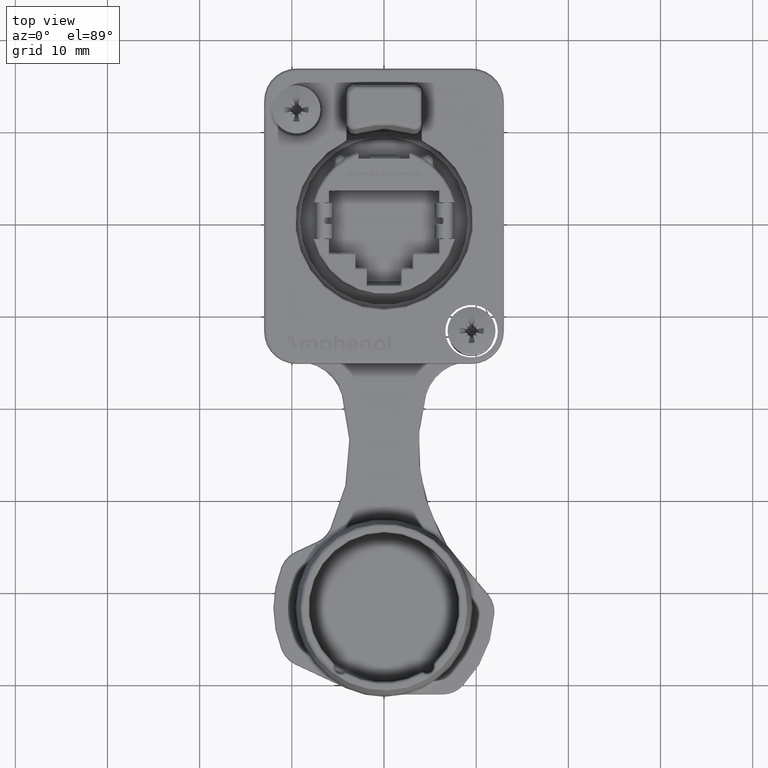
[diagram: clean part render]
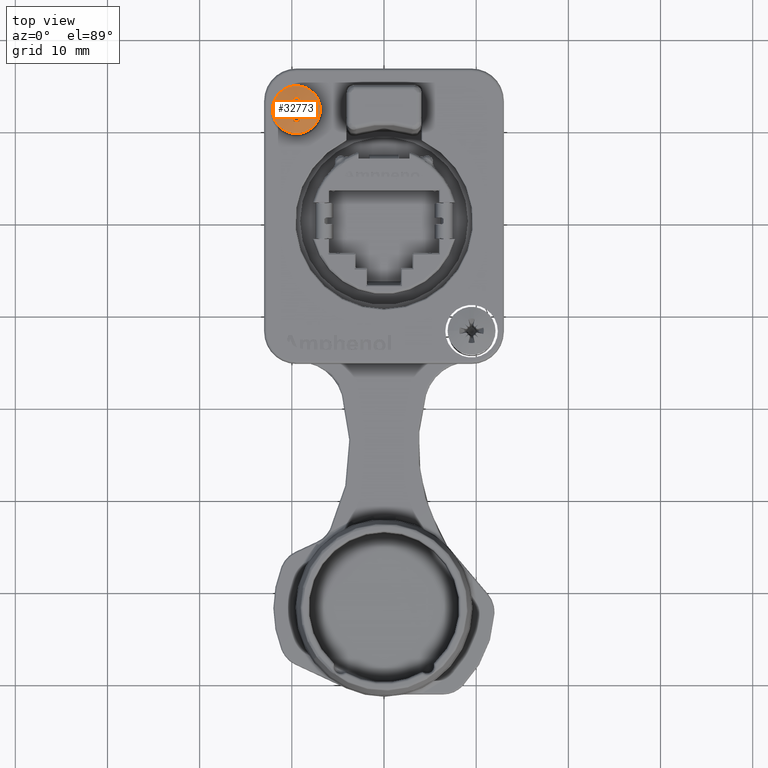
[diagram: same view with one face highlighted and labeled with its STEP entity id]
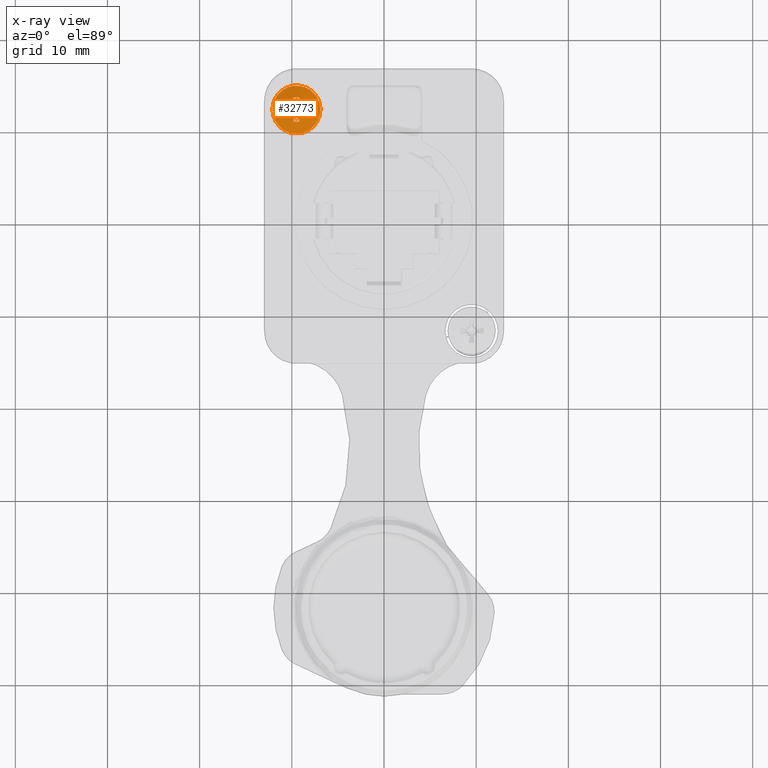
[diagram: x-ray of the same camera — body ghosted, the highlighted face saturated]
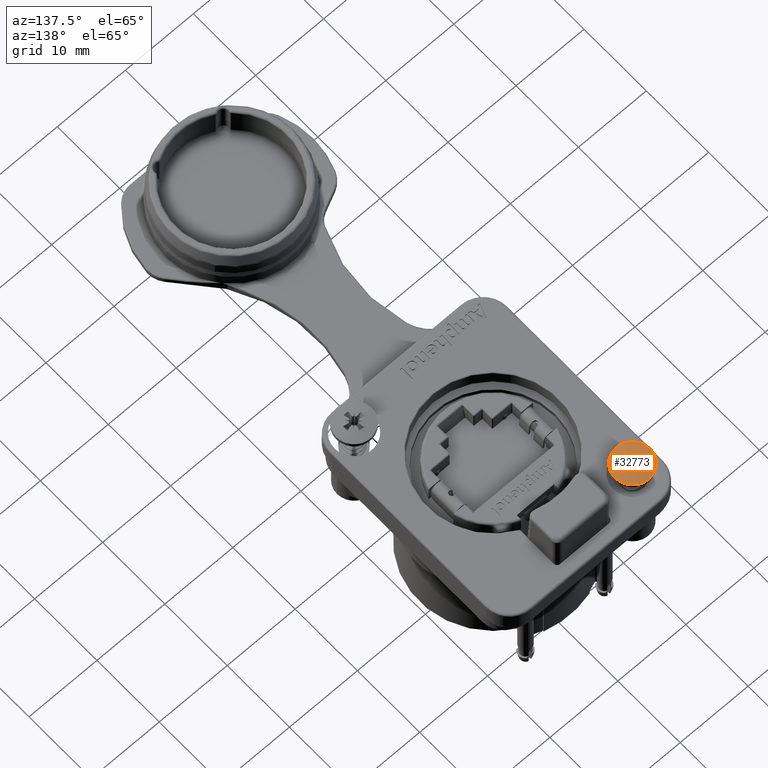
[diagram: same view with one face highlighted and labeled with its STEP entity id]
A machine part, top view. The second image highlights one B-rep face of the part: STEP entity #32773.
The next image is the same camera in x-ray: the body ghosted, the highlighted face saturated — about 0% of this face is hidden behind the body in this view.
A second angle (auxiliary view) of the same face is appended — the face is thin or edge-on in the first view.
In plain terms, the highlighted spherical surface has radius 7.397 mm.
Its self-contained STEP definition (entity closure, byte-faithful):
#551=SPHERICAL_SURFACE('',#34916,7.39701694915254);
#3769=FACE_OUTER_BOUND('',#5595,.T.);
#5595=EDGE_LOOP('',(#25834,#25835,#25836,#25837,#25838,#25839,#25840,#25841,
#25842,#25843,#25844,#25845,#25846,#25847,#25848,#25849,#25850,#25851,#25852,
#25853,#25854,#25855,#25856,#25857,#25858,#25859,#25860,#25861,#25862,#25863,
#25864,#25865));
#7113=B_SPLINE_CURVE_WITH_KNOTS('',3,(#54166,#54167,#54168,#54169,#54170,
#54171,#54172,#54173,#54174,#54175,#54176,#54177),.UNSPECIFIED.,.F.,.F.,
(4,2,2,2,2,4),(0.00949499560742937,0.0133906421099449,0.0200150421684674,
0.02663944222699,0.0332446524214257,0.0370340327717587),.UNSPECIFIED.);
#7114=B_SPLINE_CURVE_WITH_KNOTS('',3,(#54180,#54181,#54182,#54183,#54184,
#54185,#54186,#54187,#54188,#54189,#54190,#54191),.UNSPECIFIED.,.F.,.F.,
(4,2,2,2,2,4),(0.0255990058873745,0.0266596106996386,0.0332645611860719,
0.0398695116725052,0.0465233911924183,0.0531772707123313),.UNSPECIFIED.);
#7121=B_SPLINE_CURVE_WITH_KNOTS('',3,(#54270,#54271,#54272,#54273,#54274,
#54275,#54276,#54277,#54278,#54279,#54280,#54281),.UNSPECIFIED.,.F.,.F.,
(4,2,2,2,2,4),(0.00949499560742938,0.0133906421099449,0.0200150421684674,
0.02663944222699,0.0332446524214257,0.0370340327717587),.UNSPECIFIED.);
#7122=B_SPLINE_CURVE_WITH_KNOTS('',3,(#54284,#54285,#54286,#54287,#54288,
#54289,#54290,#54291,#54292,#54293,#54294,#54295),.UNSPECIFIED.,.F.,.F.,
(4,2,2,2,2,4),(0.0255990363949605,0.026659619571809,0.0332714104850036,
0.0398832013981983,0.0465302388150972,0.0531772762319961),.UNSPECIFIED.);
#7125=B_SPLINE_CURVE_WITH_KNOTS('',3,(#54324,#54325,#54326,#54327,#54328,
#54329,#54330,#54331,#54332,#54333,#54334,#54335),.UNSPECIFIED.,.F.,.F.,
(4,2,2,2,2,4),(0.0255990363949605,0.0266596195718091,0.0332714104850037,
0.0398832013981983,0.0465302388150972,0.0531772762319961),.UNSPECIFIED.);
#7128=B_SPLINE_CURVE_WITH_KNOTS('',3,(#54372,#54373,#54374,#54375,#54376,
#54377,#54378,#54379,#54380,#54381,#54382,#54383),.UNSPECIFIED.,.F.,.F.,
(4,2,2,2,2,4),(0.0255990058873745,0.0266596106996386,0.0332645611860719,
0.0398695116725052,0.0465233911924183,0.0531772707123313),.UNSPECIFIED.);
#7134=B_SPLINE_CURVE_WITH_KNOTS('',3,(#54431,#54432,#54433,#54434,#54435,
#54436,#54437,#54438,#54439,#54440,#54441,#54442),.UNSPECIFIED.,.F.,.F.,
(4,2,2,2,2,4),(0.00949439967144785,0.0133752377941526,0.0200073355198423,
0.026639433245532,0.0332446434399677,0.0370340237903006),.UNSPECIFIED.);
#7137=B_SPLINE_CURVE_WITH_KNOTS('',3,(#54470,#54471,#54472,#54473,#54474,
#54475,#54476,#54477,#54478,#54479,#54480,#54481),.UNSPECIFIED.,.F.,.F.,
(4,2,2,2,2,4),(0.00949499560742938,0.0133906421099449,0.0200150421684674,
0.02663944222699,0.0332446524214257,0.0370340327717586),.UNSPECIFIED.);
#13328=CIRCLE('',#34835,6.47521569123637);
#13329=CIRCLE('',#34838,6.47521569123637);
#13330=CIRCLE('',#34841,6.47521569123637);
#13331=CIRCLE('',#34844,6.47521569123637);
#13332=CIRCLE('',#34847,6.47521569123639);
#13333=CIRCLE('',#34850,6.47521569123637);
#13334=CIRCLE('',#34853,6.47521569123637);
#13335=CIRCLE('',#34856,6.47521569123637);
#13336=CIRCLE('',#34861,7.37348291394724);
#13337=CIRCLE('',#34863,7.37348291394724);
#13338=CIRCLE('',#34867,7.37348291394724);
#13339=CIRCLE('',#34870,7.37348291394724);
#13340=CIRCLE('',#34872,7.37348291394724);
#13341=CIRCLE('',#34876,7.37348291394724);
#13342=CIRCLE('',#34879,7.37348291394724);
#13343=CIRCLE('',#34881,1.33);
#13344=CIRCLE('',#34882,1.33);
#13346=CIRCLE('',#34885,1.33);
#13348=CIRCLE('',#34888,1.33);
#13352=CIRCLE('',#34893,1.33);
#13353=CIRCLE('',#34896,7.37348291394724);
#13362=CIRCLE('',#34917,7.39701694915254);
#13363=CIRCLE('',#34918,2.6);
#15250=VERTEX_POINT('',#54091);
#15251=VERTEX_POINT('',#54092);
#15253=VERTEX_POINT('',#54098);
#15254=VERTEX_POINT('',#54099);
#15256=VERTEX_POINT('',#54105);
#15257=VERTEX_POINT('',#54106);
#15259=VERTEX_POINT('',#54112);
#15260=VERTEX_POINT('',#54113);
#15262=VERTEX_POINT('',#54119);
#15263=VERTEX_POINT('',#54123);
#15264=VERTEX_POINT('',#54127);
#15265=VERTEX_POINT('',#54131);
#15269=VERTEX_POINT('',#54164);
#15270=VERTEX_POINT('',#54179);
#15274=VERTEX_POINT('',#54224);
#15275=VERTEX_POINT('',#54230);
#15276=VERTEX_POINT('',#54231);
#15281=VERTEX_POINT('',#54268);
#15282=VERTEX_POINT('',#54283);
#15285=VERTEX_POINT('',#54317);
#15286=VERTEX_POINT('',#54323);
#15289=VERTEX_POINT('',#54357);
#15290=VERTEX_POINT('',#54363);
#15291=VERTEX_POINT('',#54364);
#15296=VERTEX_POINT('',#54444);
#15297=VERTEX_POINT('',#54445);
#15300=VERTEX_POINT('',#54483);
#15301=VERTEX_POINT('',#54489);
#15302=VERTEX_POINT('',#54491);
#15433=VERTEX_POINT('',#59340);
#18997=EDGE_CURVE('',#15250,#15251,#13328,.T.);
#19000=EDGE_CURVE('',#15253,#15254,#13329,.T.);
#19003=EDGE_CURVE('',#15256,#15257,#13330,.T.);
#19006=EDGE_CURVE('',#15259,#15260,#13331,.T.);
#19009=EDGE_CURVE('',#15262,#15250,#13332,.T.);
#19011=EDGE_CURVE('',#15263,#15253,#13333,.T.);
#19013=EDGE_CURVE('',#15264,#15256,#13334,.T.);
#19015=EDGE_CURVE('',#15265,#15259,#13335,.T.);
#19021=EDGE_CURVE('',#15269,#15251,#7113,.T.);
#19022=EDGE_CURVE('',#15264,#15270,#7114,.T.);
#19027=EDGE_CURVE('',#15270,#15274,#13336,.T.);
#19029=EDGE_CURVE('',#15275,#15276,#13337,.T.);
#19036=EDGE_CURVE('',#15281,#15260,#7121,.T.);
#19037=EDGE_CURVE('',#15265,#15282,#7122,.T.);
#19041=EDGE_CURVE('',#15282,#15285,#13338,.T.);
#19043=EDGE_CURVE('',#15262,#15286,#7125,.T.);
#19047=EDGE_CURVE('',#15286,#15289,#13339,.T.);
#19049=EDGE_CURVE('',#15290,#15291,#13340,.T.);
#19052=EDGE_CURVE('',#15263,#15275,#7128,.T.);
#19058=EDGE_CURVE('',#15291,#15254,#7134,.T.);
#19059=EDGE_CURVE('',#15296,#15297,#13341,.T.);
#19064=EDGE_CURVE('',#15297,#15257,#7137,.T.);
#19065=EDGE_CURVE('',#15300,#15281,#13342,.T.);
#19067=EDGE_CURVE('',#15301,#15285,#13343,.T.);
#19068=EDGE_CURVE('',#15302,#15301,#13344,.T.);
#19071=EDGE_CURVE('',#15300,#15274,#13346,.T.);
#19073=EDGE_CURVE('',#15296,#15276,#13348,.T.);
#19077=EDGE_CURVE('',#15290,#15289,#13352,.T.);
#19079=EDGE_CURVE('',#15302,#15269,#13353,.T.);
#19251=EDGE_CURVE('',#15301,#15433,#13362,.T.);
#19252=EDGE_CURVE('',#15433,#15433,#13363,.T.);
#25834=ORIENTED_EDGE('',*,*,#18997,.T.);
#25835=ORIENTED_EDGE('',*,*,#19021,.F.);
#25836=ORIENTED_EDGE('',*,*,#19079,.F.);
#25837=ORIENTED_EDGE('',*,*,#19068,.T.);
#25838=ORIENTED_EDGE('',*,*,#19251,.T.);
#25839=ORIENTED_EDGE('',*,*,#19252,.F.);
#25840=ORIENTED_EDGE('',*,*,#19251,.F.);
#25841=ORIENTED_EDGE('',*,*,#19067,.T.);
#25842=ORIENTED_EDGE('',*,*,#19041,.F.);
#25843=ORIENTED_EDGE('',*,*,#19037,.F.);
#25844=ORIENTED_EDGE('',*,*,#19015,.T.);
#25845=ORIENTED_EDGE('',*,*,#19006,.T.);
#25846=ORIENTED_EDGE('',*,*,#19036,.F.);
#25847=ORIENTED_EDGE('',*,*,#19065,.F.);
#25848=ORIENTED_EDGE('',*,*,#19071,.T.);
#25849=ORIENTED_EDGE('',*,*,#19027,.F.);
#25850=ORIENTED_EDGE('',*,*,#19022,.F.);
#25851=ORIENTED_EDGE('',*,*,#19013,.T.);
#25852=ORIENTED_EDGE('',*,*,#19003,.T.);
#25853=ORIENTED_EDGE('',*,*,#19064,.F.);
#25854=ORIENTED_EDGE('',*,*,#19059,.F.);
#25855=ORIENTED_EDGE('',*,*,#19073,.T.);
#25856=ORIENTED_EDGE('',*,*,#19029,.F.);
#25857=ORIENTED_EDGE('',*,*,#19052,.F.);
#25858=ORIENTED_EDGE('',*,*,#19011,.T.);
#25859=ORIENTED_EDGE('',*,*,#19000,.T.);
#25860=ORIENTED_EDGE('',*,*,#19058,.F.);
#25861=ORIENTED_EDGE('',*,*,#19049,.F.);
#25862=ORIENTED_EDGE('',*,*,#19077,.T.);
#25863=ORIENTED_EDGE('',*,*,#19047,.F.);
#25864=ORIENTED_EDGE('',*,*,#19043,.F.);
#25865=ORIENTED_EDGE('',*,*,#19009,.T.);
#32773=ADVANCED_FACE('',(#3769),#551,.T.);
#34835=AXIS2_PLACEMENT_3D('',#54093,#39229,#39230);
#34838=AXIS2_PLACEMENT_3D('',#54100,#39236,#39237);
#34841=AXIS2_PLACEMENT_3D('',#54107,#39243,#39244);
#34844=AXIS2_PLACEMENT_3D('',#54114,#39250,#39251);
#34847=AXIS2_PLACEMENT_3D('',#54120,#39257,#39258);
#34850=AXIS2_PLACEMENT_3D('',#54124,#39263,#39264);
#34853=AXIS2_PLACEMENT_3D('',#54128,#39269,#39270);
#34856=AXIS2_PLACEMENT_3D('',#54132,#39275,#39276);
#34861=AXIS2_PLACEMENT_3D('',#54225,#39287,#39288);
#34863=AXIS2_PLACEMENT_3D('',#54232,#39291,#39292);
#34867=AXIS2_PLACEMENT_3D('',#54318,#39302,#39303);
#34870=AXIS2_PLACEMENT_3D('',#54358,#39309,#39310);
#34872=AXIS2_PLACEMENT_3D('',#54365,#39313,#39314);
#34876=AXIS2_PLACEMENT_3D('',#54446,#39322,#39323);
#34879=AXIS2_PLACEMENT_3D('',#54484,#39329,#39330);
#34881=AXIS2_PLACEMENT_3D('',#54490,#39333,#39334);
#34882=AXIS2_PLACEMENT_3D('',#54492,#39335,#39336);
#34885=AXIS2_PLACEMENT_3D('',#54498,#39341,#39342);
#34888=AXIS2_PLACEMENT_3D('',#54501,#39347,#39348);
#34893=AXIS2_PLACEMENT_3D('',#54507,#39357,#39358);
#34896=AXIS2_PLACEMENT_3D('',#54512,#39364,#39365);
#34916=AXIS2_PLACEMENT_3D('',#59339,#39419,#39420);
#34917=AXIS2_PLACEMENT_3D('',#59341,#39421,#39422);
#34918=AXIS2_PLACEMENT_3D('',#59342,#39423,#39424);
#39229=DIRECTION('center_axis',(-0.671535590650564,0.546845453935203,-0.5));
#39230=DIRECTION('ref_axis',(-1.06537756823838E-16,-0.674789056876982,-0.738010656236801));
#39236=DIRECTION('center_axis',(-0.546845453935203,-0.671535590650564,-0.5));
#39237=DIRECTION('ref_axis',(1.15993195600339E-16,-0.597204911930058,0.802088706544739));
#39243=DIRECTION('center_axis',(0.671535590650564,-0.546845453935203,-0.5));
#39244=DIRECTION('ref_axis',(1.06745945411789E-16,-0.674789056876981,0.738010656236801));
#39250=DIRECTION('center_axis',(0.546845453935202,0.671535590650564,-0.500000000000001));
#39251=DIRECTION('ref_axis',(-1.15808943579554E-16,-0.597204911930058,-0.802088706544738));
#39257=DIRECTION('center_axis',(0.546845453935205,-0.671535590650566,-0.499999999999995));
#39258=DIRECTION('ref_axis',(1.15993195600339E-16,-0.597204911930053,0.802088706544742));
#39263=DIRECTION('center_axis',(0.671535590650564,0.546845453935203,-0.5));
#39264=DIRECTION('ref_axis',(-1.06537756823838E-16,-0.674789056876981,-0.738010656236801));
#39269=DIRECTION('center_axis',(-0.546845453935203,0.671535590650564,-0.5));
#39270=DIRECTION('ref_axis',(-1.15808943579554E-16,-0.597204911930058,-0.802088706544739));
#39275=DIRECTION('center_axis',(-0.671535590650563,-0.546845453935204,-0.5));
#39276=DIRECTION('ref_axis',(1.06745945411789E-16,-0.674789056876981,0.738010656236801));
#39287=DIRECTION('center_axis',(-0.970884946016437,0.223128434101895,0.0871557427476583));
#39288=DIRECTION('ref_axis',(0.0894098495401104,-8.29194443265969E-17,0.995994919065963));
#39291=DIRECTION('center_axis',(0.223128434101895,0.970884946016437,0.0871557427476582));
#39292=DIRECTION('ref_axis',(-1.43934128886965E-16,0.0894098495401103,-0.995994919065963));
#39302=DIRECTION('center_axis',(-0.223128434101895,-0.970884946016437,0.0871557427476581));
#39303=DIRECTION('ref_axis',(1.43906543806657E-16,0.0894098495401102,0.995994919065963));
#39309=DIRECTION('center_axis',(0.970884946016437,-0.223128434101895,0.087155742747658));
#39310=DIRECTION('ref_axis',(0.0894098495401101,8.29470294069047E-17,-0.995994919065963));
#39313=DIRECTION('center_axis',(-0.970884946016437,-0.223128434101895,0.0871557427476583));
#39314=DIRECTION('ref_axis',(0.0894098495401104,-8.29194443265969E-17,0.995994919065963));
#39322=DIRECTION('center_axis',(0.223128434101895,-0.970884946016437,0.0871557427476581));
#39323=DIRECTION('ref_axis',(1.43906543806657E-16,0.0894098495401102,0.995994919065963));
#39329=DIRECTION('center_axis',(0.970884946016437,0.223128434101895,0.0871557427476581));
#39330=DIRECTION('ref_axis',(0.0894098495401101,8.29470294069047E-17,-0.995994919065963));
#39333=DIRECTION('center_axis',(-1.44499066804255E-16,8.32667268468849E-17,
-1.));
#39334=DIRECTION('ref_axis',(-1.,-1.54261977006023E-19,1.44499066804255E-16));
#39335=DIRECTION('center_axis',(-1.44499066804255E-16,8.32667268468849E-17,
-1.));
#39336=DIRECTION('ref_axis',(-1.,-1.54261977006023E-19,1.44499066804255E-16));
#39341=DIRECTION('center_axis',(-1.44499066804255E-16,8.32667268468849E-17,
-1.));
#39342=DIRECTION('ref_axis',(-1.,-1.54261977006023E-19,1.44499066804255E-16));
#39347=DIRECTION('center_axis',(-1.44499066804255E-16,8.32667268468849E-17,
-1.));
#39348=DIRECTION('ref_axis',(-1.,-1.54261977006023E-19,1.44499066804255E-16));
#39357=DIRECTION('center_axis',(-1.44499066804255E-16,8.32667268468849E-17,
-1.));
#39358=DIRECTION('ref_axis',(-1.,-1.54261977006023E-19,1.44499066804255E-16));
#39364=DIRECTION('center_axis',(-0.223128434101895,0.970884946016437,0.0871557427476583));
#39365=DIRECTION('ref_axis',(-1.43934128886965E-16,0.0894098495401103,-0.995994919065963));
#39419=DIRECTION('center_axis',(0.,0.,-1.));
#39420=DIRECTION('ref_axis',(1.,0.,-1.50090642249015E-16));
#39421=DIRECTION('center_axis',(-1.24975565104223E-32,-1.,-8.32667268468849E-17));
#39422=DIRECTION('ref_axis',(-1.,0.,1.50090642249015E-16));
#39423=DIRECTION('center_axis',(-1.44499066804255E-16,8.32667268468849E-17,
-1.));
#39424=DIRECTION('ref_axis',(1.,1.54261977006023E-19,-1.44499066804255E-16));
#54091=CARTESIAN_POINT('',(-10.2090622081769,11.290937791823,8.8537156367671));
#54092=CARTESIAN_POINT('',(-9.9507114171643,11.6504973117482,8.89997910845665));
#54093=CARTESIAN_POINT('Origin',(-7.09862013603495,10.0445062330819,3.31295966548873));
#54098=CARTESIAN_POINT('',(-8.79093779182304,11.290937791823,8.8537156367671));
#54099=CARTESIAN_POINT('',(-9.15049731174815,11.5492885828357,8.89997910845665));
#54100=CARTESIAN_POINT('Origin',(-7.54450623308192,14.401379863965,3.31295966548873));
#54105=CARTESIAN_POINT('',(-8.79093779182304,12.7090622081769,8.8537156367671));
#54106=CARTESIAN_POINT('',(-9.04928858283568,12.3495026882518,8.89997910845665));
#54107=CARTESIAN_POINT('Origin',(-11.901379863965,13.9554937669181,3.31295966548873));
#54112=CARTESIAN_POINT('',(-10.2090622081769,12.7090622081769,8.8537156367671));
#54113=CARTESIAN_POINT('',(-9.84950268825183,12.4507114171643,8.89997910845665));
#54114=CARTESIAN_POINT('Origin',(-11.4554937669181,9.59862013603495,3.31295966548873));
#54119=CARTESIAN_POINT('',(-9.84950269311923,11.5492885825643,8.89997910729));
#54120=CARTESIAN_POINT('Origin',(-11.455493766918,14.401379863965,3.31295966548869));
#54123=CARTESIAN_POINT('',(-9.04928858256435,11.650497306881,8.89997910729006));
#54124=CARTESIAN_POINT('Origin',(-11.901379863965,10.0445062330819,3.31295966548873));
#54127=CARTESIAN_POINT('',(-9.15049730688104,12.4507114174356,8.89997910729006));
#54128=CARTESIAN_POINT('Origin',(-7.54450623308192,9.59862013603495,3.31295966548873));
#54131=CARTESIAN_POINT('',(-9.95071141743565,12.3495026931192,8.89997910729));
#54132=CARTESIAN_POINT('Origin',(-7.09862013603495,13.9554937669181,3.31295966548873));
#54164=CARTESIAN_POINT('',(-10.1634439376104,11.7937021765232,8.88929857204335));
#54166=CARTESIAN_POINT('Ctrl Pts',(-10.1634439376104,11.7937021765232,8.88929857204335));
#54167=CARTESIAN_POINT('Ctrl Pts',(-10.1501543312031,11.7966415213373,8.89057815997174));
#54168=CARTESIAN_POINT('Ctrl Pts',(-10.1366943790587,11.7979799952344,8.89178945215237));
#54169=CARTESIAN_POINT('Ctrl Pts',(-10.1017530666092,11.7976915569088,8.89473961887742));
#54170=CARTESIAN_POINT('Ctrl Pts',(-10.0782823314571,11.7931429026135,8.89649648445691));
#54171=CARTESIAN_POINT('Ctrl Pts',(-10.0350947723618,11.7750088243821,8.89922627784942));
#54172=CARTESIAN_POINT('Ctrl Pts',(-10.015378382533,11.7614223649156,8.90019919454084));
#54173=CARTESIAN_POINT('Ctrl Pts',(-9.98426829676643,11.7301846615436,8.90123063416474));
#54174=CARTESIAN_POINT('Ctrl Pts',(-9.9707767298249,11.7104608788888,8.90136046107027));
#54175=CARTESIAN_POINT('Ctrl Pts',(-9.95664011083989,11.6764799600186,8.9008121502233));
#54176=CARTESIAN_POINT('Ctrl Pts',(-9.95291569073139,11.6634860378651,8.90045993532189));
#54177=CARTESIAN_POINT('Ctrl Pts',(-9.95071141851253,11.650497312846,8.89997910745281));
#54179=CARTESIAN_POINT('',(-9.29370217652318,12.6634439376104,8.88929857204335));
#54180=CARTESIAN_POINT('Ctrl Pts',(-9.15049730694208,12.4507114175106,8.89997910723426));
#54181=CARTESIAN_POINT('Ctrl Pts',(-9.15404828243281,12.4513140413253,8.90011056033007));
#54182=CARTESIAN_POINT('Ctrl Pts',(-9.15755082141816,12.4520201290323,8.90023074891044));
#54183=CARTESIAN_POINT('Ctrl Pts',(-9.18242611147558,12.457807702433,8.90101880220564));
#54184=CARTESIAN_POINT('Ctrl Pts',(-9.20432162829727,12.4673751071276,8.90133323796536));
#54185=CARTESIAN_POINT('Ctrl Pts',(-9.24245451070601,12.4944648127483,8.90099702474609));
#54186=CARTESIAN_POINT('Ctrl Pts',(-9.25869194410402,12.511987018231,8.90034637665835));
#54187=CARTESIAN_POINT('Ctrl Pts',(-9.28230011849829,12.5492985220063,8.89839674980339));
#54188=CARTESIAN_POINT('Ctrl Pts',(-9.29119750067784,12.5716166112092,8.89696184789807));
#54189=CARTESIAN_POINT('Ctrl Pts',(-9.29928213585248,12.6179088835244,8.89345075918213));
#54190=CARTESIAN_POINT('Ctrl Pts',(-9.29847098995637,12.6418827879105,8.89137458438206));
#54191=CARTESIAN_POINT('Ctrl Pts',(-9.29370217652318,12.6634439376104,8.88929857204335));
#54224=CARTESIAN_POINT('',(-9.15863989967705,13.2854467246477,8.80144920867778));
#54225=CARTESIAN_POINT('Origin',(-10.0724183705786,12.1315529869964,1.57636869489815));
#54230=CARTESIAN_POINT('',(-8.83655606238962,11.7937021765232,8.88929857204335));
#54231=CARTESIAN_POINT('',(-8.21455327535229,11.658639899677,8.80144920867778));
#54232=CARTESIAN_POINT('Origin',(-9.36844701300354,12.5724183705786,1.57636869489815));
#54268=CARTESIAN_POINT('',(-9.7062978234768,12.6634439376104,8.88929857204335));
#54270=CARTESIAN_POINT('Ctrl Pts',(-9.7062978234768,12.6634439376104,8.88929857204335));
#54271=CARTESIAN_POINT('Ctrl Pts',(-9.70335847866268,12.6501543312031,8.89057815997174));
#54272=CARTESIAN_POINT('Ctrl Pts',(-9.70202000476556,12.6366943790587,8.89178945215236));
#54273=CARTESIAN_POINT('Ctrl Pts',(-9.7023084430912,12.6017530666092,8.89473961887742));
#54274=CARTESIAN_POINT('Ctrl Pts',(-9.70685709738644,12.5782823314571,8.89649648445691));
#54275=CARTESIAN_POINT('Ctrl Pts',(-9.72499117561792,12.5350947723618,8.89922627784942));
#54276=CARTESIAN_POINT('Ctrl Pts',(-9.73857763508435,12.515378382533,8.90019919454084));
#54277=CARTESIAN_POINT('Ctrl Pts',(-9.76981533845635,12.4842682967664,8.90123063416474));
#54278=CARTESIAN_POINT('Ctrl Pts',(-9.78953912111119,12.4707767298249,8.90136046107027));
#54279=CARTESIAN_POINT('Ctrl Pts',(-9.8235200399814,12.4566401108399,8.9008121502233));
#54280=CARTESIAN_POINT('Ctrl Pts',(-9.83651396213484,12.4529156907314,8.90045993532189));
#54281=CARTESIAN_POINT('Ctrl Pts',(-9.84950268715394,12.4507114185125,8.89997910745281));
#54283=CARTESIAN_POINT('',(-10.1634439376104,12.2062978234768,8.88929857204335));
#54284=CARTESIAN_POINT('Ctrl Pts',(-9.95071141751053,12.3495026930583,8.89997910723424));
#54285=CARTESIAN_POINT('Ctrl Pts',(-9.95131405224788,12.3459516532053,8.90011056271268));
#54286=CARTESIAN_POINT('Ctrl Pts',(-9.95202014536731,12.3424491083733,8.90023075113466));
#54287=CARTESIAN_POINT('Ctrl Pts',(-9.95781286702579,12.3175516908371,8.90101950543204));
#54288=CARTESIAN_POINT('Ctrl Pts',(-9.96739416554884,12.2956359964916,8.90133380065689));
#54289=CARTESIAN_POINT('Ctrl Pts',(-9.99452474240467,12.2574767222214,8.90099547961197));
#54290=CARTESIAN_POINT('Ctrl Pts',(-10.0120739249961,12.2412330742188,8.90034286418339));
#54291=CARTESIAN_POINT('Ctrl Pts',(-10.0494034721103,12.2176537002442,8.89839022535354));
#54292=CARTESIAN_POINT('Ctrl Pts',(-10.0717043150624,12.2087780380706,8.8969556673809));
#54293=CARTESIAN_POINT('Ctrl Pts',(-10.1179551975808,12.2007189456562,8.89344677340171));
#54294=CARTESIAN_POINT('Ctrl Pts',(-10.1419049589773,12.2015339137562,8.89137244964394));
#54295=CARTESIAN_POINT('Ctrl Pts',(-10.1634439376104,12.2062978234768,8.88929857204335));
#54317=CARTESIAN_POINT('',(-10.7854467246477,12.3413601003229,8.80144920867778));
#54318=CARTESIAN_POINT('Origin',(-9.63155298699645,11.4275816294214,1.57636869489815));
#54323=CARTESIAN_POINT('',(-9.7062978234768,11.3365560623896,8.88929857204335));
#54324=CARTESIAN_POINT('Ctrl Pts',(-9.84950269305825,11.5492885824894,8.89997910723424));
#54325=CARTESIAN_POINT('Ctrl Pts',(-9.84595165320528,11.5486859477521,8.90011056271268));
#54326=CARTESIAN_POINT('Ctrl Pts',(-9.84244910837331,11.5479798546327,8.90023075113466));
#54327=CARTESIAN_POINT('Ctrl Pts',(-9.81755169083706,11.5421871329742,8.90101950543204));
#54328=CARTESIAN_POINT('Ctrl Pts',(-9.7956359964916,11.5326058344511,8.90133380065689));
#54329=CARTESIAN_POINT('Ctrl Pts',(-9.75747672222136,11.5054752575953,8.90099547961197));
#54330=CARTESIAN_POINT('Ctrl Pts',(-9.74123307421876,11.4879260750039,8.90034286418339));
#54331=CARTESIAN_POINT('Ctrl Pts',(-9.71765370024416,11.4505965278897,8.89839022535354));
#54332=CARTESIAN_POINT('Ctrl Pts',(-9.70877803807062,11.4282956849376,8.8969556673809));
#54333=CARTESIAN_POINT('Ctrl Pts',(-9.70071894565625,11.3820448024192,8.89344677340171));
#54334=CARTESIAN_POINT('Ctrl Pts',(-9.7015339137562,11.3580950410227,8.89137244964394));
#54335=CARTESIAN_POINT('Ctrl Pts',(-9.7062978234768,11.3365560623896,8.88929857204335));
#54357=CARTESIAN_POINT('',(-9.84136010032293,10.7145532753523,8.80144920867778));
#54358=CARTESIAN_POINT('Origin',(-8.92758162942142,11.8684470130035,1.57636869489815));
#54363=CARTESIAN_POINT('',(-9.15863989967704,10.7145532753523,8.80144920867778));
#54364=CARTESIAN_POINT('',(-9.29370217652318,11.3365560623896,8.88929857204335));
#54365=CARTESIAN_POINT('Origin',(-10.0724183705786,11.8684470130035,1.57636869489815));
#54372=CARTESIAN_POINT('Ctrl Pts',(-9.04928858248939,11.6504973069421,8.89997910723425));
#54373=CARTESIAN_POINT('Ctrl Pts',(-9.04868595867472,11.6540482824328,8.90011056033007));
#54374=CARTESIAN_POINT('Ctrl Pts',(-9.04797987096763,11.6575508214182,8.90023074891044));
#54375=CARTESIAN_POINT('Ctrl Pts',(-9.04219229756703,11.6824261114756,8.90101880220564));
#54376=CARTESIAN_POINT('Ctrl Pts',(-9.03262489287239,11.7043216282973,8.90133323796536));
#54377=CARTESIAN_POINT('Ctrl Pts',(-9.00553518725172,11.742454510706,8.90099702474609));
#54378=CARTESIAN_POINT('Ctrl Pts',(-8.988012981769,11.758691944104,8.90034637665835));
#54379=CARTESIAN_POINT('Ctrl Pts',(-8.95070147799368,11.7823001184983,8.89839674980339));
#54380=CARTESIAN_POINT('Ctrl Pts',(-8.92838338879075,11.7911975006778,8.89696184789807));
#54381=CARTESIAN_POINT('Ctrl Pts',(-8.88209111647555,11.7992821358525,8.89345075918213));
#54382=CARTESIAN_POINT('Ctrl Pts',(-8.85811721208952,11.7984709899564,8.89137458438206));
#54383=CARTESIAN_POINT('Ctrl Pts',(-8.83655606238962,11.7937021765232,8.88929857204335));
#54431=CARTESIAN_POINT('Ctrl Pts',(-9.29370217652318,11.3365560623896,8.88929857204335));
#54432=CARTESIAN_POINT('Ctrl Pts',(-9.29663032250504,11.3497950357197,8.89057328477285));
#54433=CARTESIAN_POINT('Ctrl Pts',(-9.29796964685173,11.3632018104944,8.89178010870665));
#54434=CARTESIAN_POINT('Ctrl Pts',(-9.2977115781003,11.3981196091413,8.89472984803316));
#54435=CARTESIAN_POINT('Ctrl Pts',(-9.29317300241447,11.4216197342459,8.89648972677191));
#54436=CARTESIAN_POINT('Ctrl Pts',(-9.27503800162962,11.4648619045691,8.89922410535948));
#54437=CARTESIAN_POINT('Ctrl Pts',(-9.26144054061688,11.4846035160202,8.90019859439626));
#54438=CARTESIAN_POINT('Ctrl Pts',(-9.23018466154363,11.5157317032336,8.90123063416474));
#54439=CARTESIAN_POINT('Ctrl Pts',(-9.21046087888879,11.5292232701751,8.90136046107027));
#54440=CARTESIAN_POINT('Ctrl Pts',(-9.17647996001858,11.5433598891601,8.9008121502233));
#54441=CARTESIAN_POINT('Ctrl Pts',(-9.16348603786514,11.5470843092686,8.90045993532189));
#54442=CARTESIAN_POINT('Ctrl Pts',(-9.15049731284604,11.5492885814874,8.89997910745281));
#54444=CARTESIAN_POINT('',(-8.21455327535229,12.3413601003229,8.80144920867778));
#54445=CARTESIAN_POINT('',(-8.83655606238962,12.2062978234768,8.88929857204335));
#54446=CARTESIAN_POINT('Origin',(-9.36844701300354,11.4275816294214,1.57636869489815));
#54470=CARTESIAN_POINT('Ctrl Pts',(-8.83655606238962,12.2062978234768,8.88929857204335));
#54471=CARTESIAN_POINT('Ctrl Pts',(-8.8498456687969,12.2033584786627,8.89057815997174));
#54472=CARTESIAN_POINT('Ctrl Pts',(-8.86330562094126,12.2020200047656,8.89178945215236));
#54473=CARTESIAN_POINT('Ctrl Pts',(-8.89824693339082,12.2023084430912,8.89473961887742));
#54474=CARTESIAN_POINT('Ctrl Pts',(-8.92171766854291,12.2068570973864,8.89649648445691));
#54475=CARTESIAN_POINT('Ctrl Pts',(-8.96490522763819,12.2249911756179,8.89922627784942));
#54476=CARTESIAN_POINT('Ctrl Pts',(-8.98462161746699,12.2385776350844,8.90019919454084));
#54477=CARTESIAN_POINT('Ctrl Pts',(-9.01573170323355,12.2698153384563,8.90123063416474));
#54478=CARTESIAN_POINT('Ctrl Pts',(-9.02922327017508,12.2895391211112,8.90136046107027));
#54479=CARTESIAN_POINT('Ctrl Pts',(-9.04335988916009,12.3235200399814,8.9008121502233));
#54480=CARTESIAN_POINT('Ctrl Pts',(-9.04708430926859,12.3365139621348,8.90045993532189));
#54481=CARTESIAN_POINT('Ctrl Pts',(-9.04928858148745,12.3495026871539,8.89997910745281));
#54483=CARTESIAN_POINT('',(-9.84136010032293,13.2854467246477,8.80144920867778));
#54484=CARTESIAN_POINT('Origin',(-8.92758162942142,12.1315529869964,1.57636869489815));
#54489=CARTESIAN_POINT('',(-10.83,12.,8.80144920867778));
#54490=CARTESIAN_POINT('Origin',(-9.49999999999999,12.,8.80144920867778));
#54491=CARTESIAN_POINT('',(-10.7854467246477,11.658639899677,8.80144920867778));
#54492=CARTESIAN_POINT('Origin',(-9.49999999999999,12.,8.80144920867778));
#54498=CARTESIAN_POINT('Origin',(-9.49999999999999,12.,8.80144920867778));
#54501=CARTESIAN_POINT('Origin',(-9.49999999999999,12.,8.80144920867778));
#54507=CARTESIAN_POINT('Origin',(-9.49999999999999,12.,8.80144920867778));
#54512=CARTESIAN_POINT('Origin',(-9.63155298699645,12.5724183705786,1.57636869489815));
#59339=CARTESIAN_POINT('Origin',(-9.49999999999999,12.,1.52498305084746));
#59340=CARTESIAN_POINT('',(-12.1,12.,8.45));
#59341=CARTESIAN_POINT('Origin',(-9.49999999999999,12.,1.52498305084746));
#59342=CARTESIAN_POINT('Origin',(-9.49999999999999,12.,8.45));